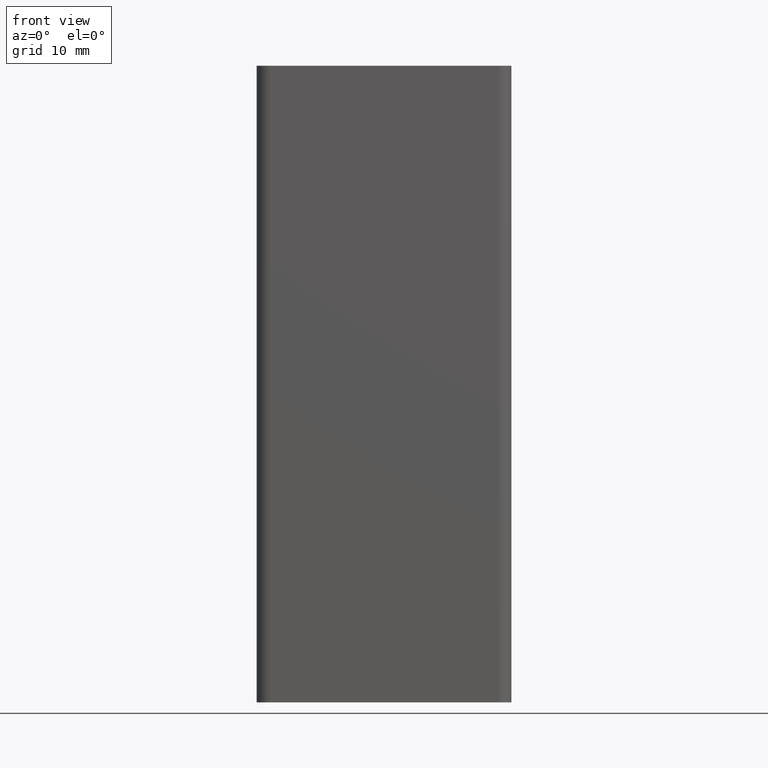
[diagram: clean part render]
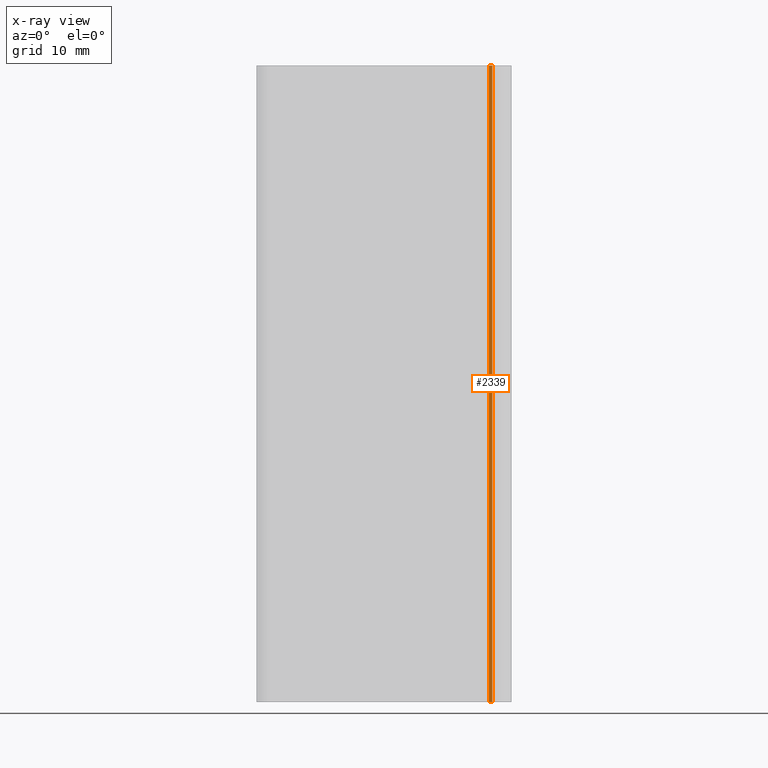
[diagram: x-ray — body ghosted, one internal face saturated and labeled with its STEP entity id]
A machine part, front view, then the same camera in x-ray: the body is ghosted and one INTERNAL B-rep face — a face not visible from any outside direction — is saturated and labeled: STEP entity #2339.
In plain terms, the highlighted planar face has unit normal (0, -1, 0).
Its self-contained STEP definition (entity closure, byte-faithful):
#268=FACE_OUTER_BOUND('',#388,.T.);
#388=EDGE_LOOP('',(#1776,#1777,#1778,#1779));
#586=LINE('',#3734,#822);
#588=LINE('',#3740,#824);
#589=LINE('',#3742,#825);
#590=LINE('',#3743,#826);
#822=VECTOR('',#3028,100.);
#824=VECTOR('',#3034,0.500001995948849);
#825=VECTOR('',#3035,100.);
#826=VECTOR('',#3036,0.500001995948849);
#1060=VERTEX_POINT('',#3730);
#1062=VERTEX_POINT('',#3733);
#1064=VERTEX_POINT('',#3739);
#1065=VERTEX_POINT('',#3741);
#1359=EDGE_CURVE('',#1062,#1060,#586,.T.);
#1362=EDGE_CURVE('',#1064,#1060,#588,.T.);
#1363=EDGE_CURVE('',#1065,#1064,#589,.T.);
#1364=EDGE_CURVE('',#1062,#1065,#590,.T.);
#1776=ORIENTED_EDGE('',*,*,#1362,.F.);
#1777=ORIENTED_EDGE('',*,*,#1363,.F.);
#1778=ORIENTED_EDGE('',*,*,#1364,.F.);
#1779=ORIENTED_EDGE('',*,*,#1359,.T.);
#2243=PLANE('',#2528);
#2339=ADVANCED_FACE('',(#268),#2243,.F.);
#2528=AXIS2_PLACEMENT_3D('',#3738,#3032,#3033);
#3028=DIRECTION('',(0.,0.,1.));
#3032=DIRECTION('center_axis',(0.,-1.,0.));
#3033=DIRECTION('ref_axis',(1.,0.,0.));
#3034=DIRECTION('',(-1.,0.,0.));
#3035=DIRECTION('',(0.,0.,1.));
#3036=DIRECTION('',(1.,0.,0.));
#3730=CARTESIAN_POINT('',(16.4999980040512,7.99999999999999,100.));
#3733=CARTESIAN_POINT('',(16.4999980040512,7.99999999999999,0.));
#3734=CARTESIAN_POINT('',(16.4999980040512,7.99999999999999,0.));
#3738=CARTESIAN_POINT('Origin',(16.4999980040512,7.99999999999999,0.));
#3739=CARTESIAN_POINT('',(17.,7.99999999999999,100.));
#3740=CARTESIAN_POINT('',(8.24999900202558,7.99999999999999,100.));
#3741=CARTESIAN_POINT('',(17.,7.99999999999999,0.));
#3742=CARTESIAN_POINT('',(17.,7.99999999999999,0.));
#3743=CARTESIAN_POINT('',(8.24999900202558,7.99999999999999,0.));